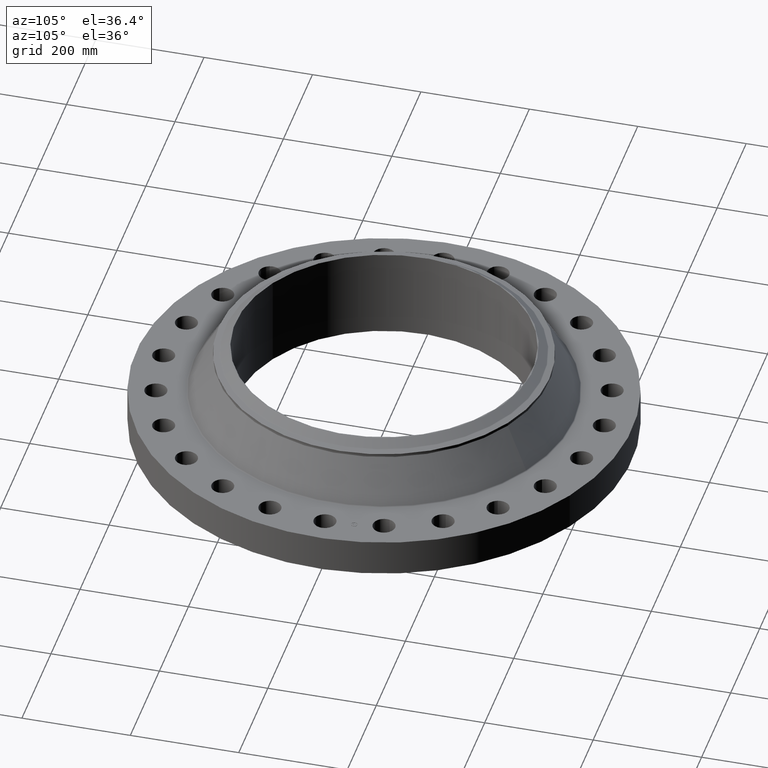
[diagram: clean part render]
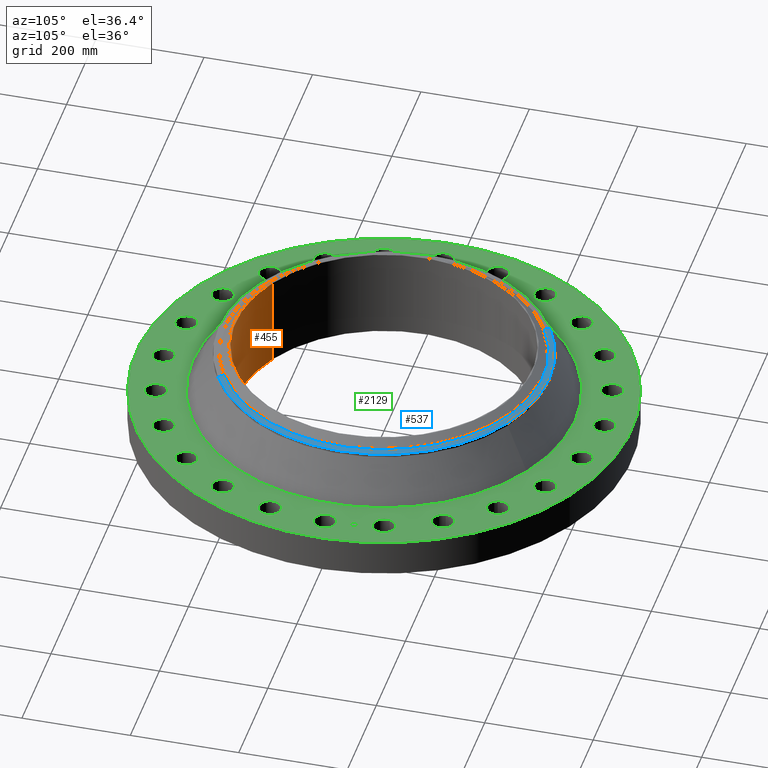
[diagram: same view with three faces highlighted in distinct colors, each labeled with its STEP entity id]
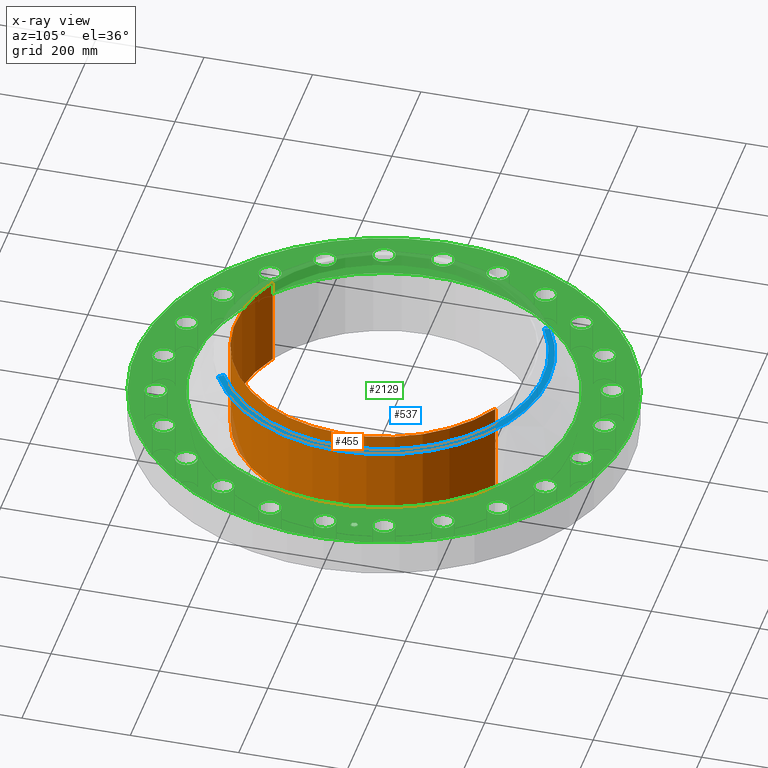
[diagram: x-ray of the same camera — body ghosted, the three highlighted faces saturated]
A machine part, auxiliary view with three faces highlighted in distinct colors.
The next image is the same camera in x-ray (body ghosted, the three faces saturated) — at least one of them is partly hidden behind the body in this view.
Their STEP definitions:

[orange] entity #455 — the highlighted cylindrical surface (partial cylindrical patch) has radius 273.837 mm, axis along (0, 0, -1).
#374=AXIS2_PLACEMENT_3D('Circle Axis2P3D',#372,#373,$) ;
#416=AXIS2_PLACEMENT_3D('Cylinder Axis2P3D',#413,#414,#415) ;
#446=AXIS2_PLACEMENT_3D('Circle Axis2P3D',#444,#445,$) ;
#367=CARTESIAN_POINT('Vertex',(-5.16868673171,-9.46121759978,6.56000000003)) ;
#369=CARTESIAN_POINT('Vertex',(5.16868673171,9.46121759978,6.56000000003)) ;
#372=CARTESIAN_POINT('Axis2P3D Location',(0.,0.,6.56000000003)) ;
#413=CARTESIAN_POINT('Axis2P3D Location',(0.,0.,3.24875000001)) ;
#418=CARTESIAN_POINT('Line Origine',(-5.16868673171,-9.46121759978,3.24875000001)) ;
#422=CARTESIAN_POINT('Vertex',(-5.16868673171,-9.46121759978,-0.0625000000004)) ;
#429=CARTESIAN_POINT('Vertex',(5.16868673171,9.46121759978,-0.0625000000004)) ;
#432=CARTESIAN_POINT('Line Origine',(5.16868673171,9.46121759978,3.24875000001)) ;
#444=CARTESIAN_POINT('Axis2P3D Location',(0.,0.,-0.0625000000004)) ;
#373=DIRECTION('Axis2P3D Direction',(0.,0.,-0.0393700787402)) ;
#414=DIRECTION('Axis2P3D Direction',(0.,0.,-0.0393700787402)) ;
#415=DIRECTION('Axis2P3D XDirection',(0.0188750212049,0.0345504945626,0.)) ;
#419=DIRECTION('Vector Direction',(0.,0.,-0.0393700787402)) ;
#433=DIRECTION('Vector Direction',(0.,0.,-0.0393700787402)) ;
#445=DIRECTION('Axis2P3D Direction',(0.,0.,-0.0393700787402)) ;
#420=VECTOR('Line Direction',#419,0.0393700787402) ;
#434=VECTOR('Line Direction',#433,0.0393700787402) ;
#450=ORIENTED_EDGE('',*,*,#376,.F.) ;
#451=ORIENTED_EDGE('',*,*,#436,.T.) ;
#452=ORIENTED_EDGE('',*,*,#448,.T.) ;
#453=ORIENTED_EDGE('',*,*,#424,.F.) ;
#455=ADVANCED_FACE('PartBody',(#454),#417,.F.) ;
#375=CIRCLE('generated circle',#374,10.781) ;
#447=CIRCLE('generated circle',#446,10.781) ;
#417=CYLINDRICAL_SURFACE('generated cylinder',#416,10.781) ;
#376=EDGE_CURVE('',#370,#368,#375,.T.) ;
#424=EDGE_CURVE('',#368,#423,#421,.T.) ;
#436=EDGE_CURVE('',#370,#430,#435,.T.) ;
#448=EDGE_CURVE('',#430,#423,#447,.T.) ;
#449=EDGE_LOOP('',(#450,#451,#452,#453)) ;
#454=FACE_OUTER_BOUND('',#449,.T.) ;
#421=LINE('Line',#418,#420) ;
#435=LINE('Line',#432,#434) ;
#368=VERTEX_POINT('',#367) ;
#370=VERTEX_POINT('',#369) ;
#423=VERTEX_POINT('',#422) ;
#430=VERTEX_POINT('',#429) ;

[blue] entity #537 — the highlighted conical surface has half-angle 80 deg.
#270=AXIS2_PLACEMENT_3D('Circle Axis2P3D',#268,#269,$) ;
#297=AXIS2_PLACEMENT_3D('Circle Axis2P3D',#295,#296,$) ;
#311=AXIS2_PLACEMENT_3D('Cone Axis2P3D',#308,#309,#310) ;
#480=AXIS2_PLACEMENT_3D('Circle Axis2P3D',#478,#479,$) ;
#265=CARTESIAN_POINT('Vertex',(5.75310646327,10.5309907427,5.9633902388)) ;
#268=CARTESIAN_POINT('Axis2P3D Location',(0.,0.,5.9633902388)) ;
#272=CARTESIAN_POINT('Vertex',(5.75310646327,-10.5309907427,5.9633902388)) ;
#292=CARTESIAN_POINT('Vertex',(-5.75310646327,10.5309907427,5.9633902388)) ;
#295=CARTESIAN_POINT('Axis2P3D Location',(0.,0.,5.9633902388)) ;
#308=CARTESIAN_POINT('Axis2P3D Location',(0.,0.,6.04141601924)) ;
#313=CARTESIAN_POINT('Line Origine',(5.64703207902,-10.3368228848,6.00240312902)) ;
#317=CARTESIAN_POINT('Vertex',(5.54095769476,-10.1426550268,6.04141601924)) ;
#324=CARTESIAN_POINT('Vertex',(-5.54095769476,10.1426550268,6.04141601924)) ;
#327=CARTESIAN_POINT('Line Origine',(-5.64703207902,10.3368228848,6.00240312902)) ;
#478=CARTESIAN_POINT('Axis2P3D Location',(0.,0.,6.04141601924)) ;
#269=DIRECTION('Axis2P3D Direction',(0.,0.,-0.0393700787402)) ;
#296=DIRECTION('Axis2P3D Direction',(0.,0.,-0.0393700787402)) ;
#309=DIRECTION('Axis2P3D Direction',(-0.,-0.,-0.0393700787402)) ;
#310=DIRECTION('Axis2P3D XDirection',(-0.0188750212049,0.0345504945626,0.)) ;
#314=DIRECTION('Vector Direction',(0.0185882672208,-0.0340255949157,-0.00683654242783)) ;
#328=DIRECTION('Vector Direction',(-0.0185882672208,0.0340255949157,-0.00683654242783)) ;
#479=DIRECTION('Axis2P3D Direction',(0.,0.,0.0393700787402)) ;
#315=VECTOR('Line Direction',#314,0.0393700787402) ;
#329=VECTOR('Line Direction',#328,0.0393700787402) ;
#531=ORIENTED_EDGE('',*,*,#331,.F.) ;
#532=ORIENTED_EDGE('',*,*,#482,.F.) ;
#533=ORIENTED_EDGE('',*,*,#319,.T.) ;
#534=ORIENTED_EDGE('',*,*,#274,.T.) ;
#535=ORIENTED_EDGE('',*,*,#299,.F.) ;
#537=ADVANCED_FACE('PartBody',(#536),#312,.T.) ;
#271=CIRCLE('generated circle',#270,12.) ;
#298=CIRCLE('generated circle',#297,12.) ;
#481=CIRCLE('generated circle',#480,11.55749381) ;
#312=CONICAL_SURFACE('Cone',#311,11.55749381,1.3962634016) ;
#274=EDGE_CURVE('',#273,#266,#271,.F.) ;
#299=EDGE_CURVE('',#293,#266,#298,.T.) ;
#319=EDGE_CURVE('',#318,#273,#316,.T.) ;
#331=EDGE_CURVE('',#325,#293,#330,.T.) ;
#482=EDGE_CURVE('',#318,#325,#481,.T.) ;
#530=EDGE_LOOP('',(#531,#532,#533,#534,#535)) ;
#536=FACE_OUTER_BOUND('',#530,.T.) ;
#316=LINE('Line',#313,#315) ;
#330=LINE('Line',#327,#329) ;
#266=VERTEX_POINT('',#265) ;
#273=VERTEX_POINT('',#272) ;
#293=VERTEX_POINT('',#292) ;
#318=VERTEX_POINT('',#317) ;
#325=VERTEX_POINT('',#324) ;

[green] entity #2129 — the highlighted planar face has unit normal (0, 0, -1).
#65=AXIS2_PLACEMENT_3D('Circle Axis2P3D',#63,#64,$) ;
#82=AXIS2_PLACEMENT_3D('Circle Axis2P3D',#80,#81,$) ;
#115=AXIS2_PLACEMENT_3D('Circle Axis2P3D',#113,#114,$) ;
#139=AXIS2_PLACEMENT_3D('Circle Axis2P3D',#137,#138,$) ;
#156=AXIS2_PLACEMENT_3D('Circle Axis2P3D',#154,#155,$) ;
#191=AXIS2_PLACEMENT_3D('Circle Axis2P3D',#189,#190,$) ;
#1034=AXIS2_PLACEMENT_3D('Circle Axis2P3D',#1032,#1033,$) ;
#1046=AXIS2_PLACEMENT_3D('Circle Axis2P3D',#1044,#1045,$) ;
#1077=AXIS2_PLACEMENT_3D('Circle Axis2P3D',#1075,#1076,$) ;
#1089=AXIS2_PLACEMENT_3D('Circle Axis2P3D',#1087,#1088,$) ;
#1120=AXIS2_PLACEMENT_3D('Circle Axis2P3D',#1118,#1119,$) ;
#1132=AXIS2_PLACEMENT_3D('Circle Axis2P3D',#1130,#1131,$) ;
#1163=AXIS2_PLACEMENT_3D('Circle Axis2P3D',#1161,#1162,$) ;
#1175=AXIS2_PLACEMENT_3D('Circle Axis2P3D',#1173,#1174,$) ;
#1206=AXIS2_PLACEMENT_3D('Circle Axis2P3D',#1204,#1205,$) ;
#1218=AXIS2_PLACEMENT_3D('Circle Axis2P3D',#1216,#1217,$) ;
#1249=AXIS2_PLACEMENT_3D('Circle Axis2P3D',#1247,#1248,$) ;
#1261=AXIS2_PLACEMENT_3D('Circle Axis2P3D',#1259,#1260,$) ;
#1292=AXIS2_PLACEMENT_3D('Circle Axis2P3D',#1290,#1291,$) ;
#1304=AXIS2_PLACEMENT_3D('Circle Axis2P3D',#1302,#1303,$) ;
#1335=AXIS2_PLACEMENT_3D('Circle Axis2P3D',#1333,#1334,$) ;
#1347=AXIS2_PLACEMENT_3D('Circle Axis2P3D',#1345,#1346,$) ;
#1378=AXIS2_PLACEMENT_3D('Circle Axis2P3D',#1376,#1377,$) ;
#1390=AXIS2_PLACEMENT_3D('Circle Axis2P3D',#1388,#1389,$) ;
#1421=AXIS2_PLACEMENT_3D('Circle Axis2P3D',#1419,#1420,$) ;
#1433=AXIS2_PLACEMENT_3D('Circle Axis2P3D',#1431,#1432,$) ;
#1464=AXIS2_PLACEMENT_3D('Circle Axis2P3D',#1462,#1463,$) ;
#1476=AXIS2_PLACEMENT_3D('Circle Axis2P3D',#1474,#1475,$) ;
#1507=AXIS2_PLACEMENT_3D('Circle Axis2P3D',#1505,#1506,$) ;
#1519=AXIS2_PLACEMENT_3D('Circle Axis2P3D',#1517,#1518,$) ;
#1550=AXIS2_PLACEMENT_3D('Circle Axis2P3D',#1548,#1549,$) ;
#1562=AXIS2_PLACEMENT_3D('Circle Axis2P3D',#1560,#1561,$) ;
#1593=AXIS2_PLACEMENT_3D('Circle Axis2P3D',#1591,#1592,$) ;
#1605=AXIS2_PLACEMENT_3D('Circle Axis2P3D',#1603,#1604,$) ;
#1636=AXIS2_PLACEMENT_3D('Circle Axis2P3D',#1634,#1635,$) ;
#1648=AXIS2_PLACEMENT_3D('Circle Axis2P3D',#1646,#1647,$) ;
#1679=AXIS2_PLACEMENT_3D('Circle Axis2P3D',#1677,#1678,$) ;
#1691=AXIS2_PLACEMENT_3D('Circle Axis2P3D',#1689,#1690,$) ;
#1722=AXIS2_PLACEMENT_3D('Circle Axis2P3D',#1720,#1721,$) ;
#1734=AXIS2_PLACEMENT_3D('Circle Axis2P3D',#1732,#1733,$) ;
#1765=AXIS2_PLACEMENT_3D('Circle Axis2P3D',#1763,#1764,$) ;
#1777=AXIS2_PLACEMENT_3D('Circle Axis2P3D',#1775,#1776,$) ;
#1808=AXIS2_PLACEMENT_3D('Circle Axis2P3D',#1806,#1807,$) ;
#1820=AXIS2_PLACEMENT_3D('Circle Axis2P3D',#1818,#1819,$) ;
#1851=AXIS2_PLACEMENT_3D('Circle Axis2P3D',#1849,#1850,$) ;
#1863=AXIS2_PLACEMENT_3D('Circle Axis2P3D',#1861,#1862,$) ;
#1894=AXIS2_PLACEMENT_3D('Circle Axis2P3D',#1892,#1893,$) ;
#1906=AXIS2_PLACEMENT_3D('Circle Axis2P3D',#1904,#1905,$) ;
#1937=AXIS2_PLACEMENT_3D('Circle Axis2P3D',#1935,#1936,$) ;
#1949=AXIS2_PLACEMENT_3D('Circle Axis2P3D',#1947,#1948,$) ;
#1980=AXIS2_PLACEMENT_3D('Circle Axis2P3D',#1978,#1979,$) ;
#1992=AXIS2_PLACEMENT_3D('Circle Axis2P3D',#1990,#1991,$) ;
#2005=AXIS2_PLACEMENT_3D('Plane Axis2P3D',#2002,#2003,#2004) ;
#2113=AXIS2_PLACEMENT_3D('Circle Axis2P3D',#2111,#2112,$) ;
#2122=AXIS2_PLACEMENT_3D('Circle Axis2P3D',#2120,#2121,$) ;
#46=CARTESIAN_POINT('Vertex',(15.2847702121,0.390731813964,2.69000000001)) ;
#60=CARTESIAN_POINT('Vertex',(16.715229788,-0.390731813964,2.69000000001)) ;
#63=CARTESIAN_POINT('Axis2P3D Location',(16.0000000001,0.,2.69000000001)) ;
#80=CARTESIAN_POINT('Axis2P3D Location',(16.0000000001,0.,2.69000000001)) ;
#110=CARTESIAN_POINT('Vertex',(-8.62965969491,-15.7964861141,2.69000000001)) ;
#113=CARTESIAN_POINT('Axis2P3D Location',(0.,0.,2.69000000001)) ;
#117=CARTESIAN_POINT('Vertex',(8.62965969491,15.7964861141,2.69000000001)) ;
#137=CARTESIAN_POINT('Axis2P3D Location',(0.,0.,2.69000000001)) ;
#154=CARTESIAN_POINT('Axis2P3D Location',(0.,0.,2.69000000001)) ;
#158=CARTESIAN_POINT('Vertex',(6.65355365657,12.1792482741,2.69000000001)) ;
#160=CARTESIAN_POINT('Vertex',(-6.65355365657,-12.1792482741,2.69000000001)) ;
#189=CARTESIAN_POINT('Axis2P3D Location',(0.,0.,2.69000000001)) ;
#1022=CARTESIAN_POINT('Vertex',(-14.8650831318,3.57857168065,2.69000000001)) ;
#1029=CARTESIAN_POINT('Vertex',(-16.0445433096,4.70363776266,2.69000000001)) ;
#1032=CARTESIAN_POINT('Axis2P3D Location',(-15.4548132207,4.14110472166,2.69000000001)) ;
#1044=CARTESIAN_POINT('Axis2P3D Location',(-15.4548132207,4.14110472166,2.69000000001)) ;
#1065=CARTESIAN_POINT('Vertex',(13.4323652017,-7.3040014291,2.69000000001)) ;
#1072=CARTESIAN_POINT('Vertex',(14.2804477195,-8.69599857096,2.69000000001)) ;
#1075=CARTESIAN_POINT('Axis2P3D Location',(13.8564064606,-8.00000000003,2.69000000001)) ;
#1087=CARTESIAN_POINT('Axis2P3D Location',(13.8564064606,-8.00000000003,2.69000000001)) ;
#1108=CARTESIAN_POINT('Vertex',(-13.4323652017,7.3040014291,2.69000000001)) ;
#1115=CARTESIAN_POINT('Vertex',(-14.2804477195,8.69599857096,2.69000000001)) ;
#1118=CARTESIAN_POINT('Axis2P3D Location',(-13.8564064606,8.00000000003,2.69000000001)) ;
#1130=CARTESIAN_POINT('Axis2P3D Location',(-13.8564064606,8.00000000003,2.69000000001)) ;
#1151=CARTESIAN_POINT('Vertex',(11.0842537811,-10.5316755506,2.69000000001)) ;
#1158=CARTESIAN_POINT('Vertex',(11.5431632169,-12.0957414475,2.69000000001)) ;
#1161=CARTESIAN_POINT('Axis2P3D Location',(11.313708499,-11.313708499,2.69000000001)) ;
#1173=CARTESIAN_POINT('Axis2P3D Location',(11.313708499,-11.313708499,2.69000000001)) ;
#1194=CARTESIAN_POINT('Vertex',(-11.0842537811,10.5316755506,2.69000000001)) ;
#1201=CARTESIAN_POINT('Vertex',(-11.5431632169,12.0957414475,2.69000000001)) ;
#1204=CARTESIAN_POINT('Axis2P3D Location',(-11.313708499,11.313708499,2.69000000001)) ;
#1216=CARTESIAN_POINT('Axis2P3D Location',(-11.313708499,11.313708499,2.69000000001)) ;
#1237=CARTESIAN_POINT('Vertex',(7.98076878302,-13.0416333877,2.69000000001)) ;
#1244=CARTESIAN_POINT('Vertex',(8.01923121704,-14.6711795335,2.69000000001)) ;
#1247=CARTESIAN_POINT('Axis2P3D Location',(8.00000000003,-13.8564064606,2.69000000001)) ;
#1259=CARTESIAN_POINT('Axis2P3D Location',(8.00000000003,-13.8564064606,2.69000000001)) ;
#1280=CARTESIAN_POINT('Vertex',(-7.98076878302,13.0416333877,2.69000000001)) ;
#1287=CARTESIAN_POINT('Vertex',(-8.01923121704,14.6711795335,2.69000000001)) ;
#1290=CARTESIAN_POINT('Axis2P3D Location',(-8.00000000003,13.8564064606,2.69000000001)) ;
#1302=CARTESIAN_POINT('Axis2P3D Location',(-8.00000000003,13.8564064606,2.69000000001)) ;
#1323=CARTESIAN_POINT('Vertex',(4.33340758117,-14.6628254618,2.69000000001)) ;
#1330=CARTESIAN_POINT('Vertex',(3.94880186214,-16.2468009796,2.69000000001)) ;
#1333=CARTESIAN_POINT('Axis2P3D Location',(4.14110472166,-15.4548132207,2.69000000001)) ;
#1345=CARTESIAN_POINT('Axis2P3D Location',(4.14110472166,-15.4548132207,2.69000000001)) ;
#1366=CARTESIAN_POINT('Vertex',(-4.33340758117,14.6628254618,2.69000000001)) ;
#1373=CARTESIAN_POINT('Vertex',(-3.94880186214,16.2468009796,2.69000000001)) ;
#1376=CARTESIAN_POINT('Axis2P3D Location',(-4.14110472166,15.4548132207,2.69000000001)) ;
#1388=CARTESIAN_POINT('Axis2P3D Location',(-4.14110472166,15.4548132207,2.69000000001)) ;
#1409=CARTESIAN_POINT('Vertex',(0.390731813964,-15.2847702121,2.69000000001)) ;
#1416=CARTESIAN_POINT('Vertex',(-0.390731813964,-16.715229788,2.69000000001)) ;
#1419=CARTESIAN_POINT('Axis2P3D Location',(-1.25821243709E-015,-16.0000000001,2.69000000001)) ;
#1431=CARTESIAN_POINT('Axis2P3D Location',(-1.25821243709E-015,-16.0000000001,2.69000000001)) ;
#1452=CARTESIAN_POINT('Vertex',(-0.390731813964,15.2847702121,2.69000000001)) ;
#1459=CARTESIAN_POINT('Vertex',(0.390731813964,16.715229788,2.69000000001)) ;
#1462=CARTESIAN_POINT('Axis2P3D Location',(-7.01222441556E-016,16.0000000001,2.69000000001)) ;
#1474=CARTESIAN_POINT('Axis2P3D Location',(-7.01222441556E-016,16.0000000001,2.69000000001)) ;
#1495=CARTESIAN_POINT('Vertex',(-3.57857168065,-14.8650831318,2.69000000001)) ;
#1502=CARTESIAN_POINT('Vertex',(-4.70363776266,-16.0445433096,2.69000000001)) ;
#1505=CARTESIAN_POINT('Axis2P3D Location',(-4.14110472166,-15.4548132207,2.69000000001)) ;
#1517=CARTESIAN_POINT('Axis2P3D Location',(-4.14110472166,-15.4548132207,2.69000000001)) ;
#1538=CARTESIAN_POINT('Vertex',(3.57857168065,14.8650831318,2.69000000001)) ;
#1545=CARTESIAN_POINT('Vertex',(4.70363776266,16.0445433096,2.69000000001)) ;
#1548=CARTESIAN_POINT('Axis2P3D Location',(4.14110472166,15.4548132207,2.69000000001)) ;
#1560=CARTESIAN_POINT('Axis2P3D Location',(4.14110472166,15.4548132207,2.69000000001)) ;
#1581=CARTESIAN_POINT('Vertex',(-7.3040014291,-13.4323652017,2.69000000001)) ;
#1588=CARTESIAN_POINT('Vertex',(-8.69599857096,-14.2804477195,2.69000000001)) ;
#1591=CARTESIAN_POINT('Axis2P3D Location',(-8.00000000003,-13.8564064606,2.69000000001)) ;
#1603=CARTESIAN_POINT('Axis2P3D Location',(-8.00000000003,-13.8564064606,2.69000000001)) ;
#1624=CARTESIAN_POINT('Vertex',(7.3040014291,13.4323652017,2.69000000001)) ;
#1631=CARTESIAN_POINT('Vertex',(8.69599857096,14.2804477195,2.69000000001)) ;
#1634=CARTESIAN_POINT('Axis2P3D Location',(8.00000000003,13.8564064606,2.69000000001)) ;
#1646=CARTESIAN_POINT('Axis2P3D Location',(8.00000000003,13.8564064606,2.69000000001)) ;
#1667=CARTESIAN_POINT('Vertex',(-10.5316755506,-11.0842537811,2.69000000001)) ;
#1674=CARTESIAN_POINT('Vertex',(-12.0957414475,-11.5431632169,2.69000000001)) ;
#1677=CARTESIAN_POINT('Axis2P3D Location',(-11.313708499,-11.313708499,2.69000000001)) ;
#1689=CARTESIAN_POINT('Axis2P3D Location',(-11.313708499,-11.313708499,2.69000000001)) ;
#1710=CARTESIAN_POINT('Vertex',(10.5316755506,11.0842537811,2.69000000001)) ;
#1717=CARTESIAN_POINT('Vertex',(12.0957414475,11.5431632169,2.69000000001)) ;
#1720=CARTESIAN_POINT('Axis2P3D Location',(11.313708499,11.313708499,2.69000000001)) ;
#1732=CARTESIAN_POINT('Axis2P3D Location',(11.313708499,11.313708499,2.69000000001)) ;
#1753=CARTESIAN_POINT('Vertex',(-13.0416333877,-7.98076878302,2.69000000001)) ;
#1760=CARTESIAN_POINT('Vertex',(-14.6711795335,-8.01923121704,2.69000000001)) ;
#1763=CARTESIAN_POINT('Axis2P3D Location',(-13.8564064606,-8.00000000003,2.69000000001)) ;
#1775=CARTESIAN_POINT('Axis2P3D Location',(-13.8564064606,-8.00000000003,2.69000000001)) ;
#1796=CARTESIAN_POINT('Vertex',(13.0416333877,7.98076878302,2.69000000001)) ;
#1803=CARTESIAN_POINT('Vertex',(14.6711795335,8.01923121704,2.69000000001)) ;
#1806=CARTESIAN_POINT('Axis2P3D Location',(13.8564064606,8.00000000003,2.69000000001)) ;
#1818=CARTESIAN_POINT('Axis2P3D Location',(13.8564064606,8.00000000003,2.69000000001)) ;
#1839=CARTESIAN_POINT('Vertex',(-14.6628254618,-4.33340758117,2.69000000001)) ;
#1846=CARTESIAN_POINT('Vertex',(-16.2468009796,-3.94880186214,2.69000000001)) ;
#1849=CARTESIAN_POINT('Axis2P3D Location',(-15.4548132207,-4.14110472166,2.69000000001)) ;
#1861=CARTESIAN_POINT('Axis2P3D Location',(-15.4548132207,-4.14110472166,2.69000000001)) ;
#1882=CARTESIAN_POINT('Vertex',(14.6628254618,4.33340758117,2.69000000001)) ;
#1889=CARTESIAN_POINT('Vertex',(16.2468009796,3.94880186214,2.69000000001)) ;
#1892=CARTESIAN_POINT('Axis2P3D Location',(15.4548132207,4.14110472166,2.69000000001)) ;
#1904=CARTESIAN_POINT('Axis2P3D Location',(15.4548132207,4.14110472166,2.69000000001)) ;
#1925=CARTESIAN_POINT('Vertex',(-15.2847702121,-0.390731813964,2.69000000001)) ;
#1932=CARTESIAN_POINT('Vertex',(-16.715229788,0.390731813964,2.69000000001)) ;
#1935=CARTESIAN_POINT('Axis2P3D Location',(-16.0000000001,-1.95943487864E-015,2.69000000001)) ;
#1947=CARTESIAN_POINT('Axis2P3D Location',(-16.0000000001,-1.95943487864E-015,2.69000000001)) ;
#1968=CARTESIAN_POINT('Vertex',(14.8650831318,-3.57857168065,2.69000000001)) ;
#1975=CARTESIAN_POINT('Vertex',(16.0445433096,-4.70363776266,2.69000000001)) ;
#1978=CARTESIAN_POINT('Axis2P3D Location',(15.4548132207,-4.14110472166,2.69000000001)) ;
#1990=CARTESIAN_POINT('Axis2P3D Location',(15.4548132207,-4.14110472166,2.69000000001)) ;
#2002=CARTESIAN_POINT('Axis2P3D Location',(0.,18.0000000001,2.69000000001)) ;
#2111=CARTESIAN_POINT('Axis2P3D Location',(15.863117782,2.08841907553,2.69000000001)) ;
#2115=CARTESIAN_POINT('Vertex',(15.8308125495,2.33380167872,2.69000000001)) ;
#2117=CARTESIAN_POINT('Vertex',(15.8954230146,1.84303647234,2.69000000001)) ;
#2120=CARTESIAN_POINT('Axis2P3D Location',(15.863117782,2.08841907553,2.69000000001)) ;
#64=DIRECTION('Axis2P3D Direction',(0.,-0.,-0.0393700787402)) ;
#81=DIRECTION('Axis2P3D Direction',(0.,-0.,-0.0393700787402)) ;
#114=DIRECTION('Axis2P3D Direction',(0.,0.,-0.0393700787402)) ;
#138=DIRECTION('Axis2P3D Direction',(0.,0.,-0.0393700787402)) ;
#155=DIRECTION('Axis2P3D Direction',(0.,0.,-0.0393700787402)) ;
#190=DIRECTION('Axis2P3D Direction',(0.,0.,-0.0393700787402)) ;
#1033=DIRECTION('Axis2P3D Direction',(0.,0.,-0.0393700787402)) ;
#1045=DIRECTION('Axis2P3D Direction',(0.,0.,-0.0393700787402)) ;
#1076=DIRECTION('Axis2P3D Direction',(0.,-0.,-0.0393700787402)) ;
#1088=DIRECTION('Axis2P3D Direction',(0.,-0.,-0.0393700787402)) ;
#1119=DIRECTION('Axis2P3D Direction',(0.,0.,-0.0393700787402)) ;
#1131=DIRECTION('Axis2P3D Direction',(0.,0.,-0.0393700787402)) ;
#1162=DIRECTION('Axis2P3D Direction',(0.,-0.,-0.0393700787402)) ;
#1174=DIRECTION('Axis2P3D Direction',(0.,-0.,-0.0393700787402)) ;
#1205=DIRECTION('Axis2P3D Direction',(0.,0.,-0.0393700787402)) ;
#1217=DIRECTION('Axis2P3D Direction',(0.,0.,-0.0393700787402)) ;
#1248=DIRECTION('Axis2P3D Direction',(0.,-0.,-0.0393700787402)) ;
#1260=DIRECTION('Axis2P3D Direction',(0.,-0.,-0.0393700787402)) ;
#1291=DIRECTION('Axis2P3D Direction',(0.,0.,-0.0393700787402)) ;
#1303=DIRECTION('Axis2P3D Direction',(0.,0.,-0.0393700787402)) ;
#1334=DIRECTION('Axis2P3D Direction',(0.,-0.,-0.0393700787402)) ;
#1346=DIRECTION('Axis2P3D Direction',(0.,-0.,-0.0393700787402)) ;
#1377=DIRECTION('Axis2P3D Direction',(0.,0.,-0.0393700787402)) ;
#1389=DIRECTION('Axis2P3D Direction',(0.,0.,-0.0393700787402)) ;
#1420=DIRECTION('Axis2P3D Direction',(0.,-0.,-0.0393700787402)) ;
#1432=DIRECTION('Axis2P3D Direction',(0.,-0.,-0.0393700787402)) ;
#1463=DIRECTION('Axis2P3D Direction',(0.,0.,-0.0393700787402)) ;
#1475=DIRECTION('Axis2P3D Direction',(0.,0.,-0.0393700787402)) ;
#1506=DIRECTION('Axis2P3D Direction',(-0.,0.,-0.0393700787402)) ;
#1518=DIRECTION('Axis2P3D Direction',(-0.,0.,-0.0393700787402)) ;
#1549=DIRECTION('Axis2P3D Direction',(0.,0.,-0.0393700787402)) ;
#1561=DIRECTION('Axis2P3D Direction',(0.,0.,-0.0393700787402)) ;
#1592=DIRECTION('Axis2P3D Direction',(-0.,0.,-0.0393700787402)) ;
#1604=DIRECTION('Axis2P3D Direction',(-0.,0.,-0.0393700787402)) ;
#1635=DIRECTION('Axis2P3D Direction',(0.,0.,-0.0393700787402)) ;
#1647=DIRECTION('Axis2P3D Direction',(0.,0.,-0.0393700787402)) ;
#1678=DIRECTION('Axis2P3D Direction',(-0.,0.,-0.0393700787402)) ;
#1690=DIRECTION('Axis2P3D Direction',(-0.,0.,-0.0393700787402)) ;
#1721=DIRECTION('Axis2P3D Direction',(0.,0.,-0.0393700787402)) ;
#1733=DIRECTION('Axis2P3D Direction',(0.,0.,-0.0393700787402)) ;
#1764=DIRECTION('Axis2P3D Direction',(-0.,0.,-0.0393700787402)) ;
#1776=DIRECTION('Axis2P3D Direction',(-0.,0.,-0.0393700787402)) ;
#1807=DIRECTION('Axis2P3D Direction',(0.,0.,-0.0393700787402)) ;
#1819=DIRECTION('Axis2P3D Direction',(0.,0.,-0.0393700787402)) ;
#1850=DIRECTION('Axis2P3D Direction',(-0.,0.,-0.0393700787402)) ;
#1862=DIRECTION('Axis2P3D Direction',(-0.,0.,-0.0393700787402)) ;
#1893=DIRECTION('Axis2P3D Direction',(0.,0.,-0.0393700787402)) ;
#1905=DIRECTION('Axis2P3D Direction',(0.,0.,-0.0393700787402)) ;
#1936=DIRECTION('Axis2P3D Direction',(-0.,0.,-0.0393700787402)) ;
#1948=DIRECTION('Axis2P3D Direction',(-0.,0.,-0.0393700787402)) ;
#1979=DIRECTION('Axis2P3D Direction',(0.,-0.,-0.0393700787402)) ;
#1991=DIRECTION('Axis2P3D Direction',(0.,-0.,-0.0393700787402)) ;
#2003=DIRECTION('Axis2P3D Direction',(0.,0.,-0.0393700787402)) ;
#2004=DIRECTION('Axis2P3D XDirection',(0.0393700787402,0.,0.)) ;
#2112=DIRECTION('Axis2P3D Direction',(0.,0.,-0.0393700787402)) ;
#2121=DIRECTION('Axis2P3D Direction',(0.,0.,-0.0393700787402)) ;
#2008=ORIENTED_EDGE('',*,*,#141,.F.) ;
#2009=ORIENTED_EDGE('',*,*,#119,.F.) ;
#2012=ORIENTED_EDGE('',*,*,#67,.T.) ;
#2013=ORIENTED_EDGE('',*,*,#84,.T.) ;
#2016=ORIENTED_EDGE('',*,*,#193,.T.) ;
#2017=ORIENTED_EDGE('',*,*,#162,.T.) ;
#2020=ORIENTED_EDGE('',*,*,#1994,.T.) ;
#2021=ORIENTED_EDGE('',*,*,#1982,.T.) ;
#2024=ORIENTED_EDGE('',*,*,#1091,.T.) ;
#2025=ORIENTED_EDGE('',*,*,#1079,.T.) ;
#2028=ORIENTED_EDGE('',*,*,#1177,.T.) ;
#2029=ORIENTED_EDGE('',*,*,#1165,.T.) ;
#2032=ORIENTED_EDGE('',*,*,#1263,.T.) ;
#2033=ORIENTED_EDGE('',*,*,#1251,.T.) ;
#2036=ORIENTED_EDGE('',*,*,#1349,.T.) ;
#2037=ORIENTED_EDGE('',*,*,#1337,.T.) ;
#2040=ORIENTED_EDGE('',*,*,#1435,.T.) ;
#2041=ORIENTED_EDGE('',*,*,#1423,.T.) ;
#2044=ORIENTED_EDGE('',*,*,#1521,.T.) ;
#2045=ORIENTED_EDGE('',*,*,#1509,.T.) ;
#2048=ORIENTED_EDGE('',*,*,#1607,.T.) ;
#2049=ORIENTED_EDGE('',*,*,#1595,.T.) ;
#2052=ORIENTED_EDGE('',*,*,#1693,.T.) ;
#2053=ORIENTED_EDGE('',*,*,#1681,.T.) ;
#2056=ORIENTED_EDGE('',*,*,#1779,.T.) ;
#2057=ORIENTED_EDGE('',*,*,#1767,.T.) ;
#2060=ORIENTED_EDGE('',*,*,#1865,.T.) ;
#2061=ORIENTED_EDGE('',*,*,#1853,.T.) ;
#2064=ORIENTED_EDGE('',*,*,#1951,.T.) ;
#2065=ORIENTED_EDGE('',*,*,#1939,.T.) ;
#2068=ORIENTED_EDGE('',*,*,#1048,.T.) ;
#2069=ORIENTED_EDGE('',*,*,#1036,.T.) ;
#2072=ORIENTED_EDGE('',*,*,#1134,.T.) ;
#2073=ORIENTED_EDGE('',*,*,#1122,.T.) ;
#2076=ORIENTED_EDGE('',*,*,#1220,.T.) ;
#2077=ORIENTED_EDGE('',*,*,#1208,.T.) ;
#2080=ORIENTED_EDGE('',*,*,#1306,.T.) ;
#2081=ORIENTED_EDGE('',*,*,#1294,.T.) ;
#2084=ORIENTED_EDGE('',*,*,#1392,.T.) ;
#2085=ORIENTED_EDGE('',*,*,#1380,.T.) ;
#2088=ORIENTED_EDGE('',*,*,#1478,.T.) ;
#2089=ORIENTED_EDGE('',*,*,#1466,.T.) ;
#2092=ORIENTED_EDGE('',*,*,#1564,.T.) ;
#2093=ORIENTED_EDGE('',*,*,#1552,.T.) ;
#2096=ORIENTED_EDGE('',*,*,#1650,.T.) ;
#2097=ORIENTED_EDGE('',*,*,#1638,.T.) ;
#2100=ORIENTED_EDGE('',*,*,#1736,.T.) ;
#2101=ORIENTED_EDGE('',*,*,#1724,.T.) ;
#2104=ORIENTED_EDGE('',*,*,#1822,.T.) ;
#2105=ORIENTED_EDGE('',*,*,#1810,.T.) ;
#2108=ORIENTED_EDGE('',*,*,#1908,.T.) ;
#2109=ORIENTED_EDGE('',*,*,#1896,.T.) ;
#2126=ORIENTED_EDGE('',*,*,#2119,.T.) ;
#2127=ORIENTED_EDGE('',*,*,#2124,.T.) ;
#2014=FACE_BOUND('',#2011,.T.) ;
#2018=FACE_BOUND('',#2015,.T.) ;
#2022=FACE_BOUND('',#2019,.T.) ;
#2026=FACE_BOUND('',#2023,.T.) ;
#2030=FACE_BOUND('',#2027,.T.) ;
#2034=FACE_BOUND('',#2031,.T.) ;
#2038=FACE_BOUND('',#2035,.T.) ;
#2042=FACE_BOUND('',#2039,.T.) ;
#2046=FACE_BOUND('',#2043,.T.) ;
#2050=FACE_BOUND('',#2047,.T.) ;
#2054=FACE_BOUND('',#2051,.T.) ;
#2058=FACE_BOUND('',#2055,.T.) ;
#2062=FACE_BOUND('',#2059,.T.) ;
#2066=FACE_BOUND('',#2063,.T.) ;
#2070=FACE_BOUND('',#2067,.T.) ;
#2074=FACE_BOUND('',#2071,.T.) ;
#2078=FACE_BOUND('',#2075,.T.) ;
#2082=FACE_BOUND('',#2079,.T.) ;
#2086=FACE_BOUND('',#2083,.T.) ;
#2090=FACE_BOUND('',#2087,.T.) ;
#2094=FACE_BOUND('',#2091,.T.) ;
#2098=FACE_BOUND('',#2095,.T.) ;
#2102=FACE_BOUND('',#2099,.T.) ;
#2106=FACE_BOUND('',#2103,.T.) ;
#2110=FACE_BOUND('',#2107,.T.) ;
#2128=FACE_BOUND('',#2125,.T.) ;
#2129=ADVANCED_FACE('PartBody',(#2010,#2014,#2018,#2022,#2026,#2030,#2034,#2038,#2042,#2046,#2050,#2054,#2058,#2062,#2066,#2070,#2074,#2078,#2082,#2086,#2090,#2094,#2098,#2102,#2106,#2110,#2128),#2006,.F.) ;
#66=CIRCLE('generated circle',#65,0.815000000003) ;
#83=CIRCLE('generated circle',#82,0.815000000003) ;
#116=CIRCLE('generated circle',#115,18.0000000001) ;
#140=CIRCLE('generated circle',#139,18.0000000001) ;
#157=CIRCLE('generated circle',#156,13.8781794477) ;
#192=CIRCLE('generated circle',#191,13.8781794477) ;
#1035=CIRCLE('generated circle',#1034,0.815000000003) ;
#1047=CIRCLE('generated circle',#1046,0.815000000003) ;
#1078=CIRCLE('generated circle',#1077,0.815000000003) ;
#1090=CIRCLE('generated circle',#1089,0.815000000003) ;
#1121=CIRCLE('generated circle',#1120,0.815000000003) ;
#1133=CIRCLE('generated circle',#1132,0.815000000003) ;
#1164=CIRCLE('generated circle',#1163,0.815000000003) ;
#1176=CIRCLE('generated circle',#1175,0.815000000003) ;
#1207=CIRCLE('generated circle',#1206,0.815000000003) ;
#1219=CIRCLE('generated circle',#1218,0.815000000003) ;
#1250=CIRCLE('generated circle',#1249,0.815000000003) ;
#1262=CIRCLE('generated circle',#1261,0.815000000003) ;
#1293=CIRCLE('generated circle',#1292,0.815000000003) ;
#1305=CIRCLE('generated circle',#1304,0.815000000003) ;
#1336=CIRCLE('generated circle',#1335,0.815000000003) ;
#1348=CIRCLE('generated circle',#1347,0.815000000003) ;
#1379=CIRCLE('generated circle',#1378,0.815000000003) ;
#1391=CIRCLE('generated circle',#1390,0.815000000003) ;
#1422=CIRCLE('generated circle',#1421,0.815000000003) ;
#1434=CIRCLE('generated circle',#1433,0.815000000003) ;
#1465=CIRCLE('generated circle',#1464,0.815000000003) ;
#1477=CIRCLE('generated circle',#1476,0.815000000003) ;
#1508=CIRCLE('generated circle',#1507,0.815000000003) ;
#1520=CIRCLE('generated circle',#1519,0.815000000003) ;
#1551=CIRCLE('generated circle',#1550,0.815000000003) ;
#1563=CIRCLE('generated circle',#1562,0.815000000003) ;
#1594=CIRCLE('generated circle',#1593,0.815000000003) ;
#1606=CIRCLE('generated circle',#1605,0.815000000003) ;
#1637=CIRCLE('generated circle',#1636,0.815000000003) ;
#1649=CIRCLE('generated circle',#1648,0.815000000003) ;
#1680=CIRCLE('generated circle',#1679,0.815000000003) ;
#1692=CIRCLE('generated circle',#1691,0.815000000003) ;
#1723=CIRCLE('generated circle',#1722,0.815000000003) ;
#1735=CIRCLE('generated circle',#1734,0.815000000003) ;
#1766=CIRCLE('generated circle',#1765,0.815000000003) ;
#1778=CIRCLE('generated circle',#1777,0.815000000003) ;
#1809=CIRCLE('generated circle',#1808,0.815000000003) ;
#1821=CIRCLE('generated circle',#1820,0.815000000003) ;
#1852=CIRCLE('generated circle',#1851,0.815000000003) ;
#1864=CIRCLE('generated circle',#1863,0.815000000003) ;
#1895=CIRCLE('generated circle',#1894,0.815000000003) ;
#1907=CIRCLE('generated circle',#1906,0.815000000003) ;
#1938=CIRCLE('generated circle',#1937,0.815000000003) ;
#1950=CIRCLE('generated circle',#1949,0.815000000003) ;
#1981=CIRCLE('generated circle',#1980,0.815000000003) ;
#1993=CIRCLE('generated circle',#1992,0.815000000003) ;
#2114=CIRCLE('generated circle',#2113,0.247500000001) ;
#2123=CIRCLE('generated circle',#2122,0.247500000001) ;
#67=EDGE_CURVE('',#47,#61,#66,.T.) ;
#84=EDGE_CURVE('',#61,#47,#83,.T.) ;
#119=EDGE_CURVE('',#111,#118,#116,.T.) ;
#141=EDGE_CURVE('',#118,#111,#140,.T.) ;
#162=EDGE_CURVE('',#159,#161,#157,.T.) ;
#193=EDGE_CURVE('',#161,#159,#192,.T.) ;
#1036=EDGE_CURVE('',#1023,#1030,#1035,.T.) ;
#1048=EDGE_CURVE('',#1030,#1023,#1047,.T.) ;
#1079=EDGE_CURVE('',#1066,#1073,#1078,.T.) ;
#1091=EDGE_CURVE('',#1073,#1066,#1090,.T.) ;
#1122=EDGE_CURVE('',#1109,#1116,#1121,.T.) ;
#1134=EDGE_CURVE('',#1116,#1109,#1133,.T.) ;
#1165=EDGE_CURVE('',#1152,#1159,#1164,.T.) ;
#1177=EDGE_CURVE('',#1159,#1152,#1176,.T.) ;
#1208=EDGE_CURVE('',#1195,#1202,#1207,.T.) ;
#1220=EDGE_CURVE('',#1202,#1195,#1219,.T.) ;
#1251=EDGE_CURVE('',#1238,#1245,#1250,.T.) ;
#1263=EDGE_CURVE('',#1245,#1238,#1262,.T.) ;
#1294=EDGE_CURVE('',#1281,#1288,#1293,.T.) ;
#1306=EDGE_CURVE('',#1288,#1281,#1305,.T.) ;
#1337=EDGE_CURVE('',#1324,#1331,#1336,.T.) ;
#1349=EDGE_CURVE('',#1331,#1324,#1348,.T.) ;
#1380=EDGE_CURVE('',#1367,#1374,#1379,.T.) ;
#1392=EDGE_CURVE('',#1374,#1367,#1391,.T.) ;
#1423=EDGE_CURVE('',#1410,#1417,#1422,.T.) ;
#1435=EDGE_CURVE('',#1417,#1410,#1434,.T.) ;
#1466=EDGE_CURVE('',#1453,#1460,#1465,.T.) ;
#1478=EDGE_CURVE('',#1460,#1453,#1477,.T.) ;
#1509=EDGE_CURVE('',#1496,#1503,#1508,.T.) ;
#1521=EDGE_CURVE('',#1503,#1496,#1520,.T.) ;
#1552=EDGE_CURVE('',#1539,#1546,#1551,.T.) ;
#1564=EDGE_CURVE('',#1546,#1539,#1563,.T.) ;
#1595=EDGE_CURVE('',#1582,#1589,#1594,.T.) ;
#1607=EDGE_CURVE('',#1589,#1582,#1606,.T.) ;
#1638=EDGE_CURVE('',#1625,#1632,#1637,.T.) ;
#1650=EDGE_CURVE('',#1632,#1625,#1649,.T.) ;
#1681=EDGE_CURVE('',#1668,#1675,#1680,.T.) ;
#1693=EDGE_CURVE('',#1675,#1668,#1692,.T.) ;
#1724=EDGE_CURVE('',#1711,#1718,#1723,.T.) ;
#1736=EDGE_CURVE('',#1718,#1711,#1735,.T.) ;
#1767=EDGE_CURVE('',#1754,#1761,#1766,.T.) ;
#1779=EDGE_CURVE('',#1761,#1754,#1778,.T.) ;
#1810=EDGE_CURVE('',#1797,#1804,#1809,.T.) ;
#1822=EDGE_CURVE('',#1804,#1797,#1821,.T.) ;
#1853=EDGE_CURVE('',#1840,#1847,#1852,.T.) ;
#1865=EDGE_CURVE('',#1847,#1840,#1864,.T.) ;
#1896=EDGE_CURVE('',#1883,#1890,#1895,.T.) ;
#1908=EDGE_CURVE('',#1890,#1883,#1907,.T.) ;
#1939=EDGE_CURVE('',#1926,#1933,#1938,.T.) ;
#1951=EDGE_CURVE('',#1933,#1926,#1950,.T.) ;
#1982=EDGE_CURVE('',#1969,#1976,#1981,.T.) ;
#1994=EDGE_CURVE('',#1976,#1969,#1993,.T.) ;
#2119=EDGE_CURVE('',#2116,#2118,#2114,.T.) ;
#2124=EDGE_CURVE('',#2118,#2116,#2123,.T.) ;
#2007=EDGE_LOOP('',(#2008,#2009)) ;
#2011=EDGE_LOOP('',(#2012,#2013)) ;
#2015=EDGE_LOOP('',(#2016,#2017)) ;
#2019=EDGE_LOOP('',(#2020,#2021)) ;
#2023=EDGE_LOOP('',(#2024,#2025)) ;
#2027=EDGE_LOOP('',(#2028,#2029)) ;
#2031=EDGE_LOOP('',(#2032,#2033)) ;
#2035=EDGE_LOOP('',(#2036,#2037)) ;
#2039=EDGE_LOOP('',(#2040,#2041)) ;
#2043=EDGE_LOOP('',(#2044,#2045)) ;
#2047=EDGE_LOOP('',(#2048,#2049)) ;
#2051=EDGE_LOOP('',(#2052,#2053)) ;
#2055=EDGE_LOOP('',(#2056,#2057)) ;
#2059=EDGE_LOOP('',(#2060,#2061)) ;
#2063=EDGE_LOOP('',(#2064,#2065)) ;
#2067=EDGE_LOOP('',(#2068,#2069)) ;
#2071=EDGE_LOOP('',(#2072,#2073)) ;
#2075=EDGE_LOOP('',(#2076,#2077)) ;
#2079=EDGE_LOOP('',(#2080,#2081)) ;
#2083=EDGE_LOOP('',(#2084,#2085)) ;
#2087=EDGE_LOOP('',(#2088,#2089)) ;
#2091=EDGE_LOOP('',(#2092,#2093)) ;
#2095=EDGE_LOOP('',(#2096,#2097)) ;
#2099=EDGE_LOOP('',(#2100,#2101)) ;
#2103=EDGE_LOOP('',(#2104,#2105)) ;
#2107=EDGE_LOOP('',(#2108,#2109)) ;
#2125=EDGE_LOOP('',(#2126,#2127)) ;
#2010=FACE_OUTER_BOUND('',#2007,.T.) ;
#2006=PLANE('',#2005) ;
#47=VERTEX_POINT('',#46) ;
#61=VERTEX_POINT('',#60) ;
#111=VERTEX_POINT('',#110) ;
#118=VERTEX_POINT('',#117) ;
#159=VERTEX_POINT('',#158) ;
#161=VERTEX_POINT('',#160) ;
#1023=VERTEX_POINT('',#1022) ;
#1030=VERTEX_POINT('',#1029) ;
#1066=VERTEX_POINT('',#1065) ;
#1073=VERTEX_POINT('',#1072) ;
#1109=VERTEX_POINT('',#1108) ;
#1116=VERTEX_POINT('',#1115) ;
#1152=VERTEX_POINT('',#1151) ;
#1159=VERTEX_POINT('',#1158) ;
#1195=VERTEX_POINT('',#1194) ;
#1202=VERTEX_POINT('',#1201) ;
#1238=VERTEX_POINT('',#1237) ;
#1245=VERTEX_POINT('',#1244) ;
#1281=VERTEX_POINT('',#1280) ;
#1288=VERTEX_POINT('',#1287) ;
#1324=VERTEX_POINT('',#1323) ;
#1331=VERTEX_POINT('',#1330) ;
#1367=VERTEX_POINT('',#1366) ;
#1374=VERTEX_POINT('',#1373) ;
#1410=VERTEX_POINT('',#1409) ;
#1417=VERTEX_POINT('',#1416) ;
#1453=VERTEX_POINT('',#1452) ;
#1460=VERTEX_POINT('',#1459) ;
#1496=VERTEX_POINT('',#1495) ;
#1503=VERTEX_POINT('',#1502) ;
#1539=VERTEX_POINT('',#1538) ;
#1546=VERTEX_POINT('',#1545) ;
#1582=VERTEX_POINT('',#1581) ;
#1589=VERTEX_POINT('',#1588) ;
#1625=VERTEX_POINT('',#1624) ;
#1632=VERTEX_POINT('',#1631) ;
#1668=VERTEX_POINT('',#1667) ;
#1675=VERTEX_POINT('',#1674) ;
#1711=VERTEX_POINT('',#1710) ;
#1718=VERTEX_POINT('',#1717) ;
#1754=VERTEX_POINT('',#1753) ;
#1761=VERTEX_POINT('',#1760) ;
#1797=VERTEX_POINT('',#1796) ;
#1804=VERTEX_POINT('',#1803) ;
#1840=VERTEX_POINT('',#1839) ;
#1847=VERTEX_POINT('',#1846) ;
#1883=VERTEX_POINT('',#1882) ;
#1890=VERTEX_POINT('',#1889) ;
#1926=VERTEX_POINT('',#1925) ;
#1933=VERTEX_POINT('',#1932) ;
#1969=VERTEX_POINT('',#1968) ;
#1976=VERTEX_POINT('',#1975) ;
#2116=VERTEX_POINT('',#2115) ;
#2118=VERTEX_POINT('',#2117) ;